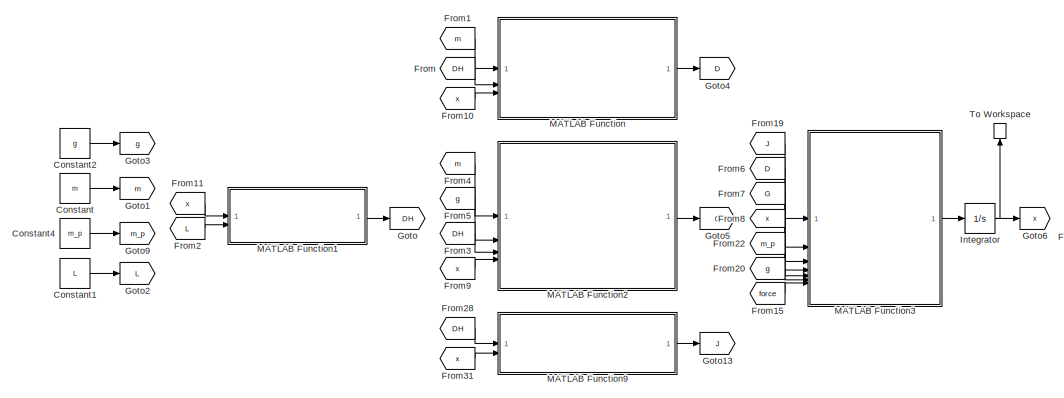
[diagram: root canvas - part 1/2, left side, full height]
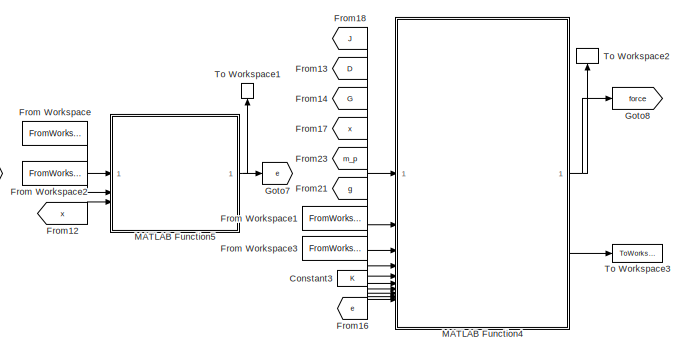
[diagram: root canvas - part 2/2, right side, full height]
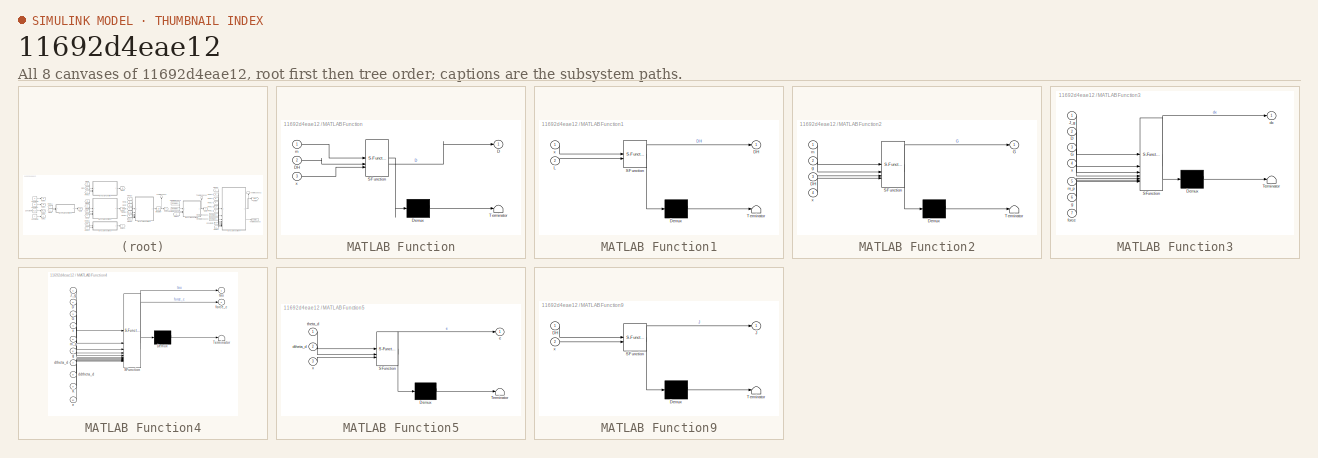
[diagram: thumbnail index - all 8 canvases of the model, root first then tree order]
MODEL slx_11692d4eae12
KIND model
CONFIG AbsTol = 1e-9
CONFIG EnableMultiTasking = off
CONFIG FixedStep = auto
CONFIG MaxStep = auto
CONFIG MinStep = auto
CONFIG RelTol = 1e-6
CONFIG SampleTimeConstraint = Unconstrained
CONFIG SolverName = VariableStepAuto
CONFIG StartTime = 0.0
CONFIG StopTime = t
BLOCK [Constant] Constant
  Value = m
BLOCK [Constant] Constant1
  Value = L
BLOCK [Constant] Constant2
  Value = g
BLOCK [Constant] Constant3
  Value = K
BLOCK [Constant] Constant4
  Value = m_p
BLOCK [From] From
  GotoTag = DH
BLOCK [FromWorkspace] From Workspace
  VariableName = theta_d
BLOCK [FromWorkspace] From Workspace1
  VariableName = dtheta_d
BLOCK [FromWorkspace] From Workspace2
  VariableName = dtheta_d
BLOCK [FromWorkspace] From Workspace3
  VariableName = ddtheta_d
BLOCK [From] From1
  GotoTag = m
BLOCK [From] From10
  GotoTag = x
BLOCK [From] From11
  GotoTag = x
BLOCK [From] From12
  GotoTag = x
BLOCK [From] From13
  GotoTag = D
BLOCK [From] From14
  GotoTag = G
BLOCK [From] From15
  GotoTag = force
BLOCK [From] From16
  GotoTag = e
BLOCK [From] From17
  GotoTag = x
BLOCK [From] From18
  GotoTag = J
BLOCK [From] From19
  GotoTag = J
BLOCK [From] From2
  GotoTag = L
BLOCK [From] From20
  GotoTag = g
BLOCK [From] From21
  GotoTag = g
BLOCK [From] From22
  GotoTag = m_p
BLOCK [From] From23
  GotoTag = m_p
BLOCK [From] From28
  GotoTag = DH
BLOCK [From] From3
  GotoTag = DH
BLOCK [From] From31
  GotoTag = x
BLOCK [From] From4
  GotoTag = m
BLOCK [From] From5
  GotoTag = g
BLOCK [From] From6
  GotoTag = D
BLOCK [From] From7
  GotoTag = G
BLOCK [From] From8
  GotoTag = x
BLOCK [From] From9
  GotoTag = x
BLOCK [Goto] Goto
  GotoTag = DH
BLOCK [Goto] Goto1
  GotoTag = m
BLOCK [Goto] Goto13
  GotoTag = J
BLOCK [Goto] Goto2
  GotoTag = L
BLOCK [Goto] Goto3
  GotoTag = g
BLOCK [Goto] Goto4
  GotoTag = D
BLOCK [Goto] Goto5
  GotoTag = G
BLOCK [Goto] Goto6
  GotoTag = x
BLOCK [Goto] Goto7
  GotoTag = e
BLOCK [Goto] Goto8
  GotoTag = force
BLOCK [Goto] Goto9
  GotoTag = m_p
BLOCK [Integrator] Integrator
  InitialCondition = [theta_0; dtheta_0]
  LowerSaturationLimit = [zeros(3, 1); -inf; -inf; -inf]
  UpperSaturationLimit = [L(2 : end); inf; inf; inf]
BLOCK [SubSystem] MATLAB Function
  ErrorFcn = Stateflow.Translate.translate
  PermitHierarchicalResolution = ExplicitOnly
  SFBlockType = MATLAB Function
  TreatAsAtomicUnit = on
BLOCK [Demux] MATLAB Function/ Demux 
  Outputs = 1
BLOCK [S-Function] MATLAB Function/ SFunction 
  EnableBusSupport = on
  FunctionName = sf_sfun
  PortCounts = [3 2]
  SFcnIsStateOwnerBlock = off
  SFunctionDeploymentMode = off
  Tag = Stateflow S-Function 2
BLOCK [Terminator] MATLAB Function/ Terminator 
BLOCK [Outport] MATLAB Function/D
BLOCK [Inport] MATLAB Function/DH
  Port = 2
BLOCK [Inport] MATLAB Function/m
BLOCK [Inport] MATLAB Function/x
  Port = 3
BLOCK [SubSystem] MATLAB Function1
  ErrorFcn = Stateflow.Translate.translate
  PermitHierarchicalResolution = ExplicitOnly
  SFBlockType = MATLAB Function
  TreatAsAtomicUnit = on
BLOCK [Demux] MATLAB Function1/ Demux 
  Outputs = 1
BLOCK [S-Function] MATLAB Function1/ SFunction 
  EnableBusSupport = on
  FunctionName = sf_sfun
  PortCounts = [2 2]
  SFcnIsStateOwnerBlock = off
  SFunctionDeploymentMode = off
  Tag = Stateflow S-Function 1
BLOCK [Terminator] MATLAB Function1/ Terminator 
BLOCK [Outport] MATLAB Function1/DH
BLOCK [Inport] MATLAB Function1/L
  Port = 2
BLOCK [Inport] MATLAB Function1/x
BLOCK [SubSystem] MATLAB Function2
  ErrorFcn = Stateflow.Translate.translate
  PermitHierarchicalResolution = ExplicitOnly
  SFBlockType = MATLAB Function
  TreatAsAtomicUnit = on
BLOCK [Demux] MATLAB Function2/ Demux 
  Outputs = 1
BLOCK [S-Function] MATLAB Function2/ SFunction 
  EnableBusSupport = on
  FunctionName = sf_sfun
  PortCounts = [4 2]
  SFcnIsStateOwnerBlock = off
  SFunctionDeploymentMode = off
  Tag = Stateflow S-Function 3
BLOCK [Terminator] MATLAB Function2/ Terminator 
BLOCK [Inport] MATLAB Function2/DH
  Port = 3
BLOCK [Outport] MATLAB Function2/G
BLOCK [Inport] MATLAB Function2/g
  Port = 2
BLOCK [Inport] MATLAB Function2/m
BLOCK [Inport] MATLAB Function2/x
  Port = 4
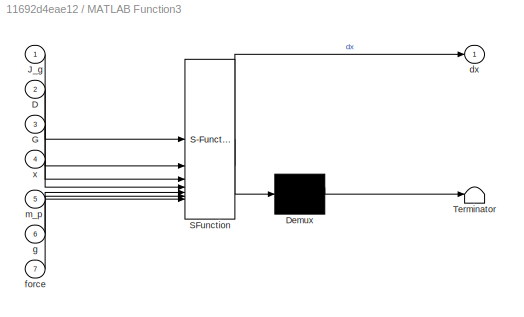
BLOCK [SubSystem] MATLAB Function3
  ErrorFcn = Stateflow.Translate.translate
  PermitHierarchicalResolution = ExplicitOnly
  SFBlockType = MATLAB Function
  TreatAsAtomicUnit = on
BLOCK [Demux] MATLAB Function3/ Demux 
  Outputs = 1
BLOCK [S-Function] MATLAB Function3/ SFunction 
  EnableBusSupport = on
  FunctionName = sf_sfun
  PortCounts = [7 2]
  SFcnIsStateOwnerBlock = off
  SFunctionDeploymentMode = off
  Tag = Stateflow S-Function 4
BLOCK [Terminator] MATLAB Function3/ Terminator 
BLOCK [Inport] MATLAB Function3/D
  Port = 2
BLOCK [Inport] MATLAB Function3/G
  Port = 3
BLOCK [Inport] MATLAB Function3/J_g
BLOCK [Outport] MATLAB Function3/dx
BLOCK [Inport] MATLAB Function3/force
  Port = 7
BLOCK [Inport] MATLAB Function3/g
  Port = 6
BLOCK [Inport] MATLAB Function3/m_p
  Port = 5
BLOCK [Inport] MATLAB Function3/x
  Port = 4
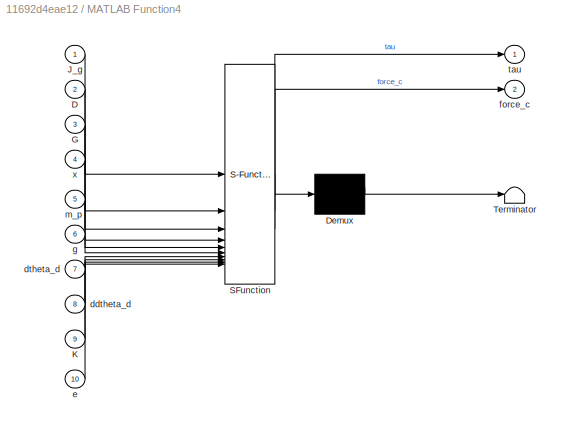
BLOCK [SubSystem] MATLAB Function4
  ErrorFcn = Stateflow.Translate.translate
  PermitHierarchicalResolution = ExplicitOnly
  SFBlockType = MATLAB Function
  TreatAsAtomicUnit = on
BLOCK [Demux] MATLAB Function4/ Demux 
  Outputs = 1
BLOCK [S-Function] MATLAB Function4/ SFunction 
  EnableBusSupport = on
  FunctionName = sf_sfun
  PortCounts = [10 3]
  SFcnIsStateOwnerBlock = off
  SFunctionDeploymentMode = off
  Tag = Stateflow S-Function 5
BLOCK [Terminator] MATLAB Function4/ Terminator 
BLOCK [Inport] MATLAB Function4/D
  Port = 2
BLOCK [Inport] MATLAB Function4/G
  Port = 3
BLOCK [Inport] MATLAB Function4/J_g
BLOCK [Inport] MATLAB Function4/K
  Port = 9
BLOCK [Inport] MATLAB Function4/ddtheta_d
  Port = 8
BLOCK [Inport] MATLAB Function4/dtheta_d
  Port = 7
BLOCK [Inport] MATLAB Function4/e
  Port = 10
BLOCK [Outport] MATLAB Function4/force_c
  Port = 2
BLOCK [Inport] MATLAB Function4/g
  Port = 6
BLOCK [Inport] MATLAB Function4/m_p
  Port = 5
BLOCK [Outport] MATLAB Function4/tau
BLOCK [Inport] MATLAB Function4/x
  Port = 4
BLOCK [SubSystem] MATLAB Function5
  ErrorFcn = Stateflow.Translate.translate
  PermitHierarchicalResolution = ExplicitOnly
  SFBlockType = MATLAB Function
  TreatAsAtomicUnit = on
BLOCK [Demux] MATLAB Function5/ Demux 
  Outputs = 1
BLOCK [S-Function] MATLAB Function5/ SFunction 
  EnableBusSupport = on
  FunctionName = sf_sfun
  PortCounts = [3 2]
  SFcnIsStateOwnerBlock = off
  SFunctionDeploymentMode = off
  Tag = Stateflow S-Function 6
BLOCK [Terminator] MATLAB Function5/ Terminator 
BLOCK [Inport] MATLAB Function5/dtheta_d
  Port = 2
BLOCK [Outport] MATLAB Function5/e
BLOCK [Inport] MATLAB Function5/theta_d
BLOCK [Inport] MATLAB Function5/x
  Port = 3
BLOCK [SubSystem] MATLAB Function9
  ErrorFcn = Stateflow.Translate.translate
  PermitHierarchicalResolution = ExplicitOnly
  SFBlockType = MATLAB Function
  TreatAsAtomicUnit = on
BLOCK [Demux] MATLAB Function9/ Demux 
  Outputs = 1
BLOCK [S-Function] MATLAB Function9/ SFunction 
  EnableBusSupport = on
  FunctionName = sf_sfun
  PortCounts = [2 2]
  SFcnIsStateOwnerBlock = off
  SFunctionDeploymentMode = off
  Tag = Stateflow S-Function 10
BLOCK [Terminator] MATLAB Function9/ Terminator 
BLOCK [Inport] MATLAB Function9/DH
BLOCK [Outport] MATLAB Function9/J
BLOCK [Inport] MATLAB Function9/x
  Port = 2
BLOCK [ToWorkspace] To Workspace
  FixptAsFi = on
  MaxDataPoints = inf
  NameLocation = right
  SampleTime = -1
  SaveFormat = Timeseries
  VariableName = x
BLOCK [ToWorkspace] To Workspace1
  FixptAsFi = on
  MaxDataPoints = inf
  NameLocation = right
  SampleTime = -1
  SaveFormat = Timeseries
  VariableName = e
BLOCK [ToWorkspace] To Workspace2
  FixptAsFi = on
  MaxDataPoints = inf
  NameLocation = right
  SampleTime = -1
  SaveFormat = Timeseries
  VariableName = force
BLOCK [ToWorkspace] To Workspace3
  FixptAsFi = on
  MaxDataPoints = inf
  SampleTime = -1
  SaveFormat = Timeseries
  VariableName = force_c
LINE Constant1:1 -> Goto2:1
LINE Constant2:1 -> Goto3:1
LINE Constant3:1 -> MATLAB Function4:9
LINE Constant4:1 -> Goto9:1
LINE Constant:1 -> Goto1:1
LINE From Workspace1:1 -> MATLAB Function4:7
LINE From Workspace2:1 -> MATLAB Function5:2
LINE From Workspace3:1 -> MATLAB Function4:8
LINE From Workspace:1 -> MATLAB Function5:1
LINE From10:1 -> MATLAB Function:3
LINE From11:1 -> MATLAB Function1:1
LINE From12:1 -> MATLAB Function5:3
LINE From13:1 -> MATLAB Function4:2
LINE From14:1 -> MATLAB Function4:3
LINE From15:1 -> MATLAB Function3:7
LINE From16:1 -> MATLAB Function4:10
LINE From17:1 -> MATLAB Function4:4
LINE From18:1 -> MATLAB Function4:1
LINE From19:1 -> MATLAB Function3:1
LINE From1:1 -> MATLAB Function:1
LINE From20:1 -> MATLAB Function3:6
LINE From21:1 -> MATLAB Function4:6
LINE From22:1 -> MATLAB Function3:5
LINE From23:1 -> MATLAB Function4:5
LINE From28:1 -> MATLAB Function9:1
LINE From2:1 -> MATLAB Function1:2
LINE From31:1 -> MATLAB Function9:2
LINE From3:1 -> MATLAB Function2:3
LINE From4:1 -> MATLAB Function2:1
LINE From5:1 -> MATLAB Function2:2
LINE From6:1 -> MATLAB Function3:2
LINE From7:1 -> MATLAB Function3:3
LINE From8:1 -> MATLAB Function3:4
LINE From9:1 -> MATLAB Function2:4
LINE From:1 -> MATLAB Function:2
NET Integrator:1 -> Goto6:1, To Workspace:1
LINE MATLAB Function1:1 -> Goto:1
LINE MATLAB Function2:1 -> Goto5:1
LINE MATLAB Function3:1 -> Integrator:1
NET MATLAB Function4:1 -> Goto8:1, To Workspace2:1
LINE MATLAB Function4:2 -> To Workspace3:1
NET MATLAB Function5:1 -> Goto7:1, To Workspace1:1
LINE MATLAB Function9:1 -> Goto13:1
LINE MATLAB Function:1 -> Goto4:1
note: NET lines group one-source signal fan-out (src -> all destinations, sorted); 1:1 wires keep LINE
CHART MATLAB Function1 states=1 transitions=1
  STATE_LABEL 'eML_blk_kernel()'
  STATE_LABEL "SCRIPT:\nfunction DH = denavitHartenberg(x, L)\n\n% Denavit - Hartenberg parameters' table\nDH = denavitHartenberg(x(1 : 3, :), L);\n"
CHART MATLAB Function states=1 transitions=1
  STATE_LABEL 'eML_blk_kernel()'
  STATE_LABEL 'SCRIPT:\nfunction D = massMatrix(m, DH, x)\n\n% Mass matrix\nD = massMatrixHTM(m, DH, x(1 : 3, :));'
CHART MATLAB Function2 states=1 transitions=1
  STATE_LABEL 'eML_blk_kernel()'
  STATE_LABEL 'SCRIPT:\nfunction G = gravitationalEffects(m, g, DH, x)\n\n% Gravitational Effects\nG = gravitationalEffectsHTM(m, g, DH, x(1 : 3, :));'
CHART MATLAB Function3 states=1 transitions=1
  STATE_LABEL 'eML_blk_kernel()'
  STATE_LABEL 'SCRIPT:\nfunction dx = jointsModel(J_g, D, G, x, m_p, g, force)\n\n% Torques generated by the plates\ntau_p = m_p * transpose(J_g) * g;\n\n% State space matrix\nA = [zeros(3, 3) eye(3)\n     zeros(3, 3) zeros(3, 3)];\n\n% Nonlinear terms\nPhi = [zeros(3, 1); D \\ (tau_p - G)];\n\n% Input matrix\nB = [zeros(3, 3) zeros(3, 3)\n     zeros(3, 3) inv(D)];\n\n% Input vector\nu = [zeros(3, 1); force];\n\n% State space equati...<+32ch>'
CHART MATLAB Function4 states=1 transitions=1
  STATE_LABEL 'eML_blk_kernel()'
  STATE_LABEL 'SCRIPT:\nfunction [tau, force_c] = controlJoints(J_g, D, G, x, m_p, g, dtheta_d, ddtheta_d, K, e)\n\n% Torques generated by the plates\ntau_p = m_p * transpose(J_g) * g;\n\n% State space matrix\nA = [zeros(3, 3) eye(3)\n     zeros(3, 3) zeros(3, 3)];\n\n% Nonlinear terms\nPhi = [zeros(3, 1); D \\ (tau_p - G)];\n\n% Input matrix\nB = [zeros(3, 3) zeros(3, 3)\n     zeros(3, 3) inv(D)];\n\n% Input vector\nu = pinv(B) *...<+156ch>'
CHART MATLAB Function5 states=1 transitions=1
  STATE_LABEL 'eML_blk_kernel()'
  STATE_LABEL 'SCRIPT:\nfunction e = error(theta_d, dtheta_d, x)\n\n% Error function\ne = [theta_d - x(1 : 3, :); dtheta_d - x(4 : 6, :)];'
CHART MATLAB Function9 states=1 transitions=1
  STATE_LABEL 'eML_blk_kernel()'
  STATE_LABEL 'SCRIPT:\nfunction J = jacobianMatrix(DH, x)\n\n% Gravitational Effects\nJ = jacobianMatrixHTM(DH, x(1 : 3, :), 5);'
CHART  states=0 transitions=0
CHART  states=0 transitions=0
CHART  states=0 transitions=0
CHART  states=0 transitions=0
CHART  states=0 transitions=0
CHART  states=0 transitions=0
CHART  states=0 transitions=0
